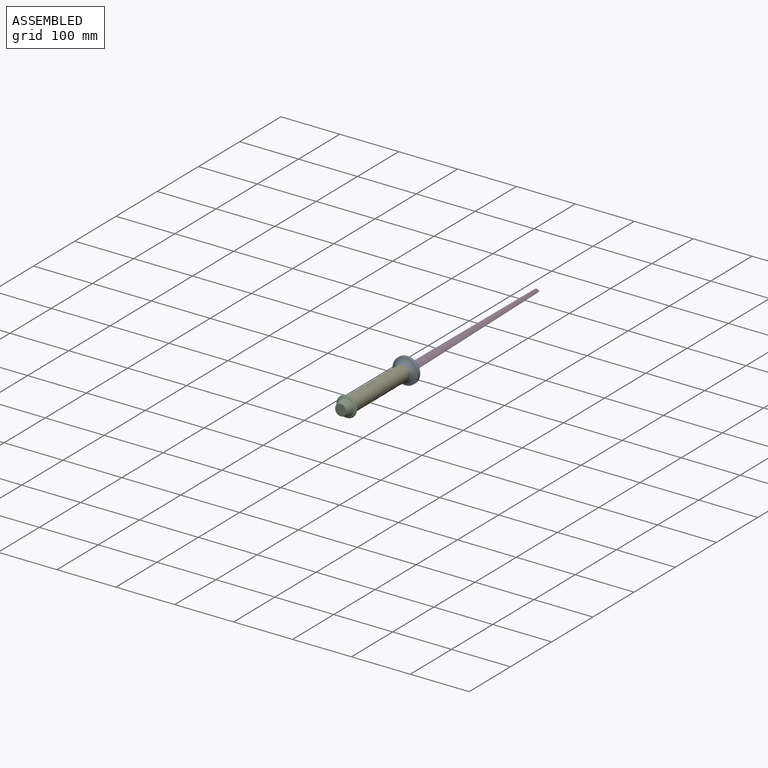
[diagram: assembled view]
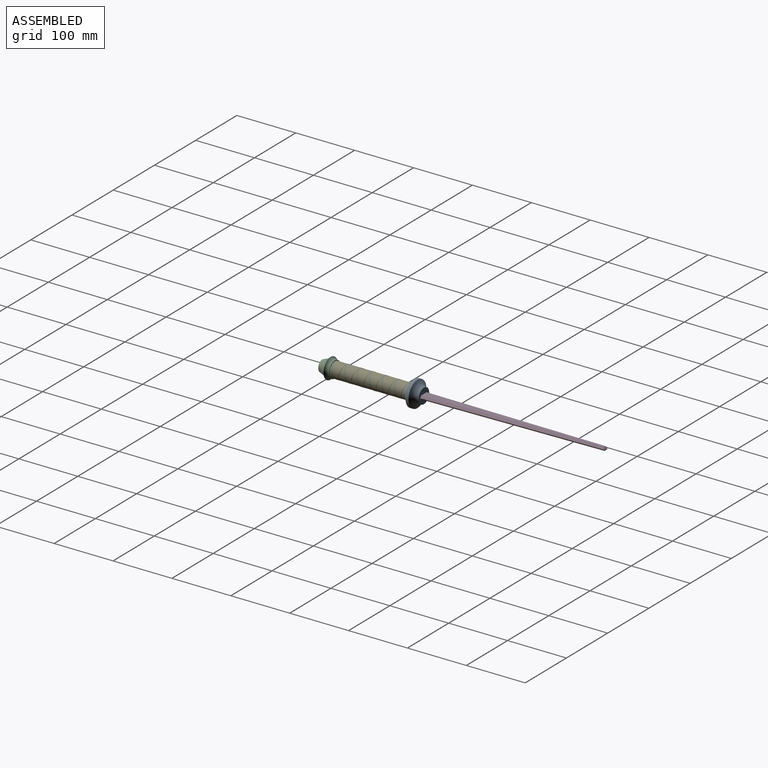
[diagram: assembled view, second angle]
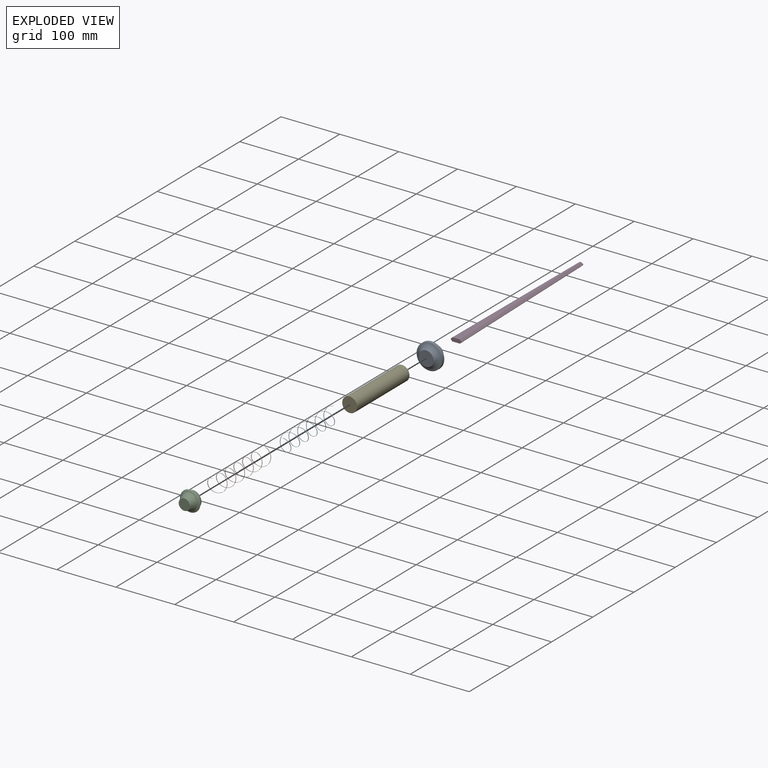
[diagram: exploded view]
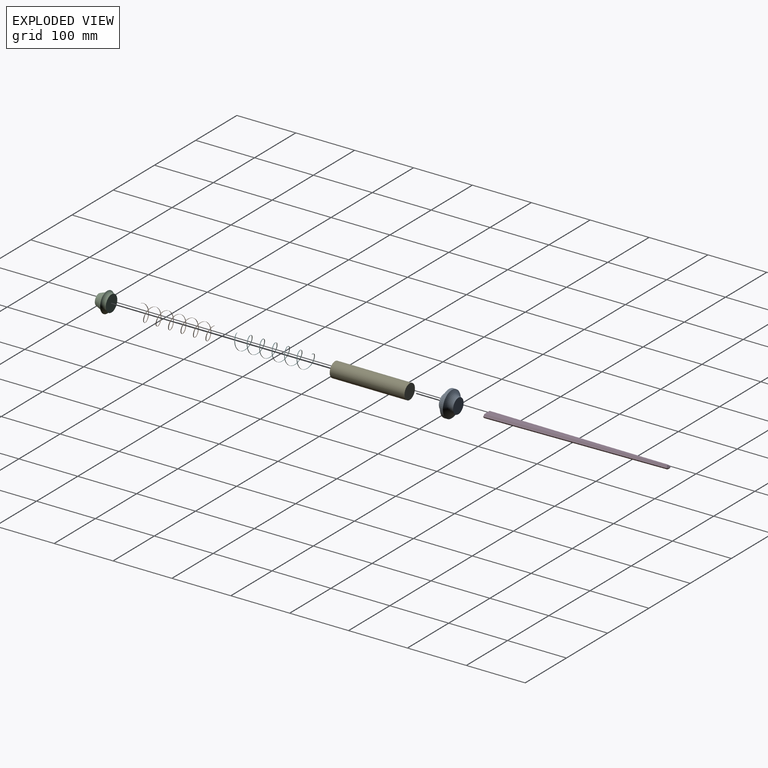
[diagram: exploded view, second angle]
ASSEMBLY  parts=6 mates=5
PART A: 5 faces, bbox 59.9x59.9x31.5 mm
  f0: plane 25.4x25.4mm, normal (0,0,1), area 506.7mm2, adj f4
  f1: plane 25.4x25.4mm, normal (0,0,-1), area 506.7mm2, adj f2
  f2: torus R=27.66mm, axis (0,0,-1), area 1529.9mm2, adj f1,f3
  f3: cylinder r=21.76mm len=43.52mm, axis (0,0,-1), area 694.5mm2, adj f2,f4
  f4: torus R=24.63mm, axis (0,0,-1), area 1310.9mm2, adj f0,f3
PART B: 5 faces, bbox 25.9x128.3x27.3 mm
  f0: cylinder r=12.7mm len=127mm, axis (0,1,0), area 526mm2, adj f1,f2,f3,f4
  f1: bspline ~127.64x27.24mm, area 339.7mm2, adj f0,f2,f3,f4
  f2: bspline ~127.64x27.24mm, area 337.8mm2, adj f0,f1,f3,f4
  f3: plane 1.27x0.26mm, normal (0,0,1), area 0.2mm2, adj f0,f1,f2
  f4: plane 4.71x1.06mm, normal (0,1,0), area 0.8mm2, adj f0,f1,f2
PART C: 5 faces, bbox 46.6x46.6x26.3 mm
  f0: plane 27.94x27.94mm, normal (0,0,-1), area 613.1mm2, adj f1
  f1: torus R=21.54mm, axis (0,0,1), area 798.3mm2, adj f0,f2
  f2: torus R=12.07mm, axis (0,0,1), area 434.6mm2, adj f1,f3
  f3: cone r=14mm half-angle=20.6deg, axis (0,0,-1), area 938.9mm2, adj f2,f4
  f4: plane 19.07x19.07mm, normal (0,0,1), area 285.7mm2, adj f3
PART D: 12 faces, bbox 19x6.4x309.7 mm
  f0: plane 9.52x6.35mm, normal (0,0,-1), area 50.4mm2, adj f1,f2,f3,f8,f9
  f1: plane 9.52x6.35mm, normal (-0.02,0,-1), area 50.4mm2, adj f0,f2,f3,f10,f11
  f2: plane 305.9x12.7mm, normal (0,-1,0), area 2322.5mm2, adj f0,f1,f6,f7,f8,f10
  f3: plane 305.9x12.7mm, normal (0,1,0), area 2322.5mm2, adj f0,f1,f4,f5,f9,f11
  f4: plane 4.59x4.43mm, normal (-0.38,0.71,0.6), area 15.2mm2, adj f3,f5,f6,f9
  f5: plane 4.61x4.42mm, normal (0.39,0.71,0.59), area 15.2mm2, adj f3,f4,f7,f11
  f6: plane 4.59x4.43mm, normal (-0.38,-0.71,0.6), area 15.2mm2, adj f2,f4,f7,f8
  f7: plane 4.61x4.42mm, normal (0.39,-0.71,0.59), area 15.2mm2, adj f2,f5,f6,f10
  f8: plane 306.76x10.8mm, normal (-0.71,-0.71,0.02), area 1373.8mm2, adj f0,f2,f6,f9
  f9: plane 306.76x10.8mm, normal (-0.71,0.71,0.02), area 1373.8mm2, adj f0,f3,f4,f8
  f10: plane 306.84x5.72mm, normal (0.71,-0.71,0.01), area 1373.8mm2, adj f1,f2,f7,f11
  f11: plane 306.84x5.72mm, normal (0.71,0.71,0.01), area 1373.8mm2, adj f1,f3,f5,f10
PART E: 3 faces, bbox 25.4x127x25.4 mm
  f0: cylinder r=12.7mm len=127mm, axis (0,1,0), area 10134.1mm2, adj f1,f2
  f1: plane 25.4x25.4mm, normal (0,-1,0), area 506.7mm2, adj f0
  f2: plane 25.4x25.4mm, normal (0,1,0), area 506.7mm2, adj f0
PART F: 5 faces, bbox 26x128.3x27.3 mm
  f0: cylinder r=12.7mm len=127mm, axis (0,1,0), area 638.8mm2, adj f1,f2,f3,f4
  f1: bspline ~127.64x27.24mm, area 337.9mm2, adj f0,f2,f3,f4
  f2: bspline ~127.64x27.24mm, area 339.2mm2, adj f0,f1,f3,f4
  f3: plane 1.27x0.26mm, normal (0,0,-1), area 0.2mm2, adj f0,f1,f2
  f4: plane 4.71x1.06mm, normal (0,1,0), area 0.8mm2, adj f0,f1,f2
PLACE A rot(axis=(1,0,0),90deg) t=(-42.11,-45.71,43.74)mm
PLACE B rot(axis=(0.71,0,-0.71),180deg) t=(-42.11,-172.71,43.74)mm
PLACE C rot(axis=(1,0,0),90deg) t=(-42.11,-172.71,43.74)mm
PLACE D rot(axis=(-1,-0.01,0.01),90deg) t=(-42.11,-21.5,40.57)mm
PLACE E t=(-42.11,-45.71,43.74)mm
PLACE F rot(axis=(0.71,0,-0.71),180deg) t=(-42.11,-172.71,43.74)mm
MATE fastened B.f0 <-> E.f0  axis (0,-1,0) through (-42.11,-172.71,43.74)mm
MATE fastened F.f0 <-> E.f0  axis (0,-1,0) through (-42.11,-172.71,43.74)mm
MATE fastened A.f2 <-> E.f0  axis (0,-1,0) through (-42.11,-45.71,43.74)mm
MATE fastened D.f1 <-> A.f2  axis (0,-1,0) through (-42.11,-21.5,43.74)mm
MATE fastened C.f1 <-> E.f0  axis (0,1,0) through (-42.11,-172.71,43.74)mm
